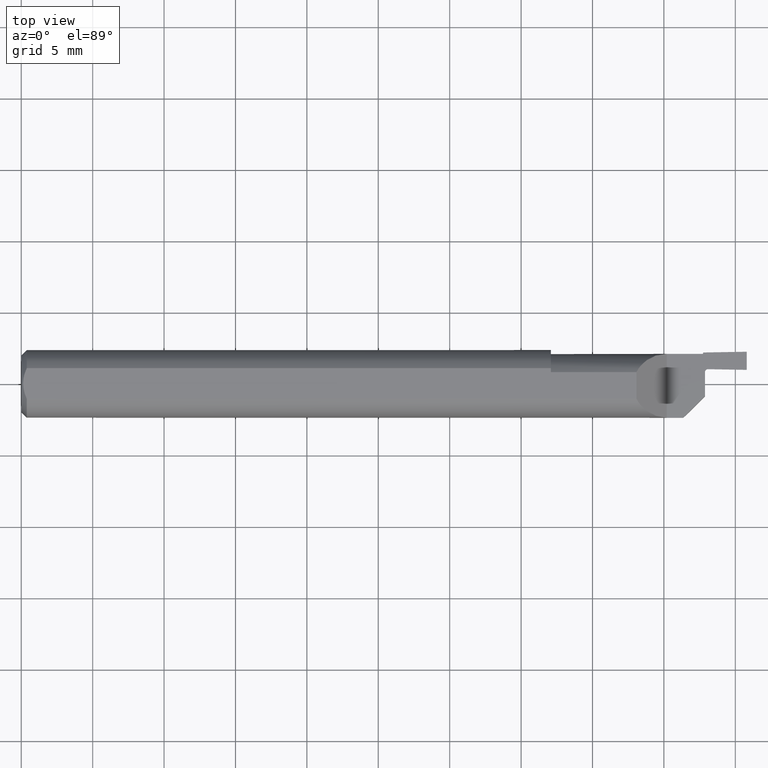
[diagram: clean part render]
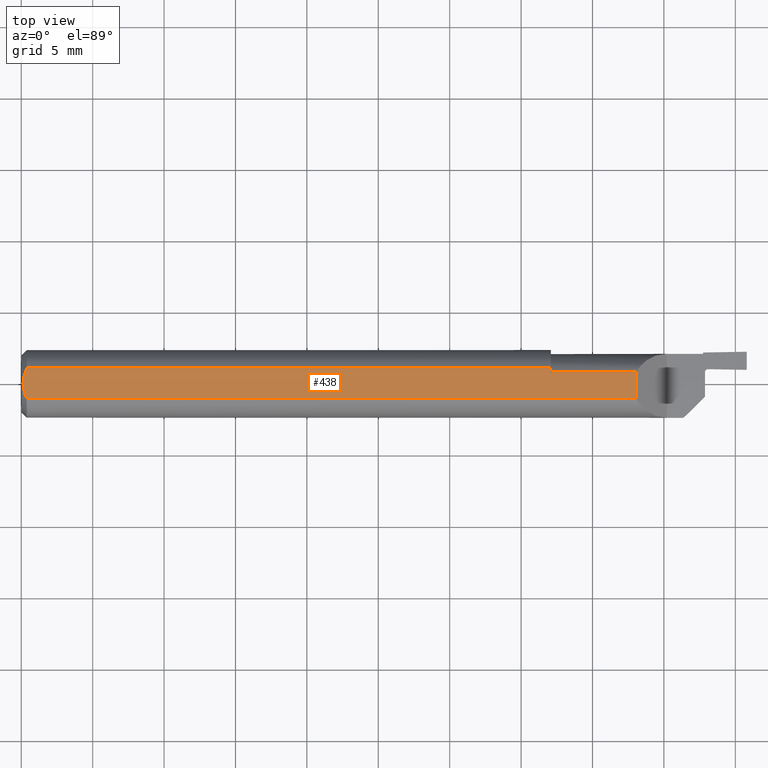
[diagram: same view with one face highlighted and labeled with its STEP entity id]
A machine part, top view. The second image highlights one B-rep face of the part: STEP entity #438.
In plain terms, the highlighted planar face has unit normal (0, 0, -1).
Its self-contained STEP definition (entity closure, byte-faithful):
#8 = CARTESIAN_POINT ( 'NONE',  ( 0.004999999999999748569, -0.007328888879231088525, 0.08360000000000000764 ) ) ;
#26 = CARTESIAN_POINT ( 'NONE',  ( 1.695999999999999286, 0.04209513035969836975, 0.08360000000000000764 ) ) ;
#28 = ORIENTED_EDGE ( 'NONE', *, *, #532, .T. ) ;
#53 = DIRECTION ( 'NONE',  ( 1.000000000000000000, 0.000000000000000000, 0.000000000000000000 ) ) ;
#63 = CARTESIAN_POINT ( 'NONE',  ( 0.005981829149300420256, 0.01454044632356572483, 0.08359999999999997988 ) ) ;
#72 = EDGE_CURVE ( 'NONE', #77, #456, #390, .T. ) ;
#77 = VERTEX_POINT ( 'NONE', #359 ) ;
#107 = ORIENTED_EDGE ( 'NONE', *, *, #488, .F. ) ;
#111 = CARTESIAN_POINT ( 'NONE',  ( 0.01206089165507011340, -0.03555991978469319470, 0.08360000000000000764 ) ) ;
#113 = CARTESIAN_POINT ( 'NONE',  ( 0.01499999999999997689, 0.04209513035969836975, 0.08360000000000000764 ) ) ;
#124 = LINE ( 'NONE', #551, #133 ) ;
#133 = VECTOR ( 'NONE', #53, 39.37007874015748143 ) ;
#151 = VERTEX_POINT ( 'NONE', #572 ) ;
#172 = CARTESIAN_POINT ( 'NONE',  ( 0.01499999999999997689, -0.04209513035969836975, 0.08360000000000000764 ) ) ;
#192 = VERTEX_POINT ( 'NONE', #200 ) ;
#196 = VECTOR ( 'NONE', #321, 39.37007874015748143 ) ;
#200 = CARTESIAN_POINT ( 'NONE',  ( 1.459999999999999964, 0.04209513035969836975, 0.08360000000000000764 ) ) ;
#232 = CARTESIAN_POINT ( 'NONE',  ( 1.459999999999999964, -0.1936000000000000221, 0.08360000000000000764 ) ) ;
#242 = EDGE_CURVE ( 'NONE', #671, #151, #380, .T. ) ;
#258 = CARTESIAN_POINT ( 'NONE',  ( 0.005975039161239103364, -0.01453776427033152789, 0.08360000000000000764 ) ) ;
#260 = LINE ( 'NONE', #26, #550 ) ;
#294 = CARTESIAN_POINT ( 'NONE',  ( 0.01499999999999997689, -0.04209513035969836975, 0.08360000000000000764 ) ) ;
#298 = CARTESIAN_POINT ( 'NONE',  ( 0.01499999999999997689, 0.04209513035969836975, 0.08360000000000000764 ) ) ;
#310 = CARTESIAN_POINT ( 'NONE',  ( 0.004999999999999745967, 0.007308422719211837837, 0.08360000000000000764 ) ) ;
#321 = DIRECTION ( 'NONE',  ( 1.000000000000000000, 0.000000000000000000, 0.000000000000000000 ) ) ;
#337 = VECTOR ( 'NONE', #677, 39.37007874015748143 ) ;
#359 = CARTESIAN_POINT ( 'NONE',  ( 0.004999999999999758110, 1.025183009042025117E-17, 0.08360000000000000764 ) ) ;
#371 = LINE ( 'NONE', #232, #591 ) ;
#380 = LINE ( 'NONE', #624, #196 ) ;
#384 = ORIENTED_EDGE ( 'NONE', *, *, #242, .F. ) ;
#390 = B_SPLINE_CURVE_WITH_KNOTS ( 'NONE', 3,
 ( #559, #8, #258, #499, #111, #172 ),
 .UNSPECIFIED., .F., .F.,
 ( 4, 2, 4 ),
 ( 0.002614097267282436323, 0.003163218599391053043, 0.003712339931499670197 ),
 .UNSPECIFIED. ) ;
#416 = PLANE ( 'NONE',  #720 ) ;
#421 = LINE ( 'NONE', #659, #337 ) ;
#422 = VERTEX_POINT ( 'NONE', #298 ) ;
#427 = CARTESIAN_POINT ( 'NONE',  ( 0.009492654797564087366, 0.02859466010166635333, 0.08360000000000000764 ) ) ;
#430 = CARTESIAN_POINT ( 'NONE',  ( 0.000000000000000000, -0.1936000000000000221, 0.08360000000000000764 ) ) ;
#438 = ADVANCED_FACE ( 'NONE', ( #721 ), #416, .F. ) ;
#456 = VERTEX_POINT ( 'NONE', #294 ) ;
#470 = EDGE_CURVE ( 'NONE', #422, #192, #124, .T. ) ;
#474 = DIRECTION ( 'NONE',  ( 0.000000000000000000, -1.000000000000000000, 0.000000000000000000 ) ) ;
#483 = DIRECTION ( 'NONE',  ( -1.000000000000000000, 0.000000000000000000, -0.000000000000000000 ) ) ;
#488 = EDGE_CURVE ( 'NONE', #783, #456, #421, .T. ) ;
#499 = CARTESIAN_POINT ( 'NONE',  ( 0.009539353699420572222, -0.02875682547511376752, 0.08359999999999997988 ) ) ;
#502 = DIRECTION ( 'NONE',  ( -0.000000000000000000, 1.000000000000000000, 0.000000000000000000 ) ) ;
#509 = EDGE_LOOP ( 'NONE', ( #714, #767, #28, #691, #107, #708, #384 ) ) ;
#532 = EDGE_CURVE ( 'NONE', #422, #77, #648, .T. ) ;
#546 = EDGE_CURVE ( 'NONE', #192, #671, #371, .T. ) ;
#550 = VECTOR ( 'NONE', #502, 39.37007874015748143 ) ;
#551 = CARTESIAN_POINT ( 'NONE',  ( 0.000000000000000000, 0.04209513035969836975, 0.08360000000000000764 ) ) ;
#559 = CARTESIAN_POINT ( 'NONE',  ( 0.004999999999999758110, 1.025183009042025117E-17, 0.08360000000000000764 ) ) ;
#572 = CARTESIAN_POINT ( 'NONE',  ( 1.695999999999999286, 0.03097154424326387101, 0.08360000000000000764 ) ) ;
#591 = VECTOR ( 'NONE', #474, 39.37007874015748143 ) ;
#596 = CARTESIAN_POINT ( 'NONE',  ( 1.695999999999999286, -0.04209513035969836975, 0.08360000000000000764 ) ) ;
#624 = CARTESIAN_POINT ( 'NONE',  ( 1.660946387129862867, 0.03097154424326387101, 0.08360000000000000764 ) ) ;
#627 = EDGE_CURVE ( 'NONE', #783, #151, #260, .T. ) ;
#648 = B_SPLINE_CURVE_WITH_KNOTS ( 'NONE', 3,
 ( #113, #673, #427, #63, #310, #742 ),
 .UNSPECIFIED., .F., .F.,
 ( 4, 2, 4 ),
 ( 0.001518921481343232533, 0.002066509374312834428, 0.002614097267282436323 ),
 .UNSPECIFIED. ) ;
#659 = CARTESIAN_POINT ( 'NONE',  ( 0.000000000000000000, -0.04209513035969836975, 0.08360000000000000764 ) ) ;
#671 = VERTEX_POINT ( 'NONE', #709 ) ;
#673 = CARTESIAN_POINT ( 'NONE',  ( 0.01203648650249636819, 0.03550565407121131223, 0.08360000000000000764 ) ) ;
#677 = DIRECTION ( 'NONE',  ( -1.000000000000000000, -0.000000000000000000, -0.000000000000000000 ) ) ;
#691 = ORIENTED_EDGE ( 'NONE', *, *, #72, .T. ) ;
#708 = ORIENTED_EDGE ( 'NONE', *, *, #627, .T. ) ;
#709 = CARTESIAN_POINT ( 'NONE',  ( 1.459999999999999964, 0.03097154424326387101, 0.08360000000000000764 ) ) ;
#714 = ORIENTED_EDGE ( 'NONE', *, *, #546, .F. ) ;
#720 = AXIS2_PLACEMENT_3D ( 'NONE', #430, #790, #483 ) ;
#721 = FACE_OUTER_BOUND ( 'NONE', #509, .T. ) ;
#742 = CARTESIAN_POINT ( 'NONE',  ( 0.004999999999999758110, 1.025183009042025117E-17, 0.08360000000000000764 ) ) ;
#767 = ORIENTED_EDGE ( 'NONE', *, *, #470, .F. ) ;
#783 = VERTEX_POINT ( 'NONE', #596 ) ;
#790 = DIRECTION ( 'NONE',  ( 0.000000000000000000, 0.000000000000000000, -1.000000000000000000 ) ) ;